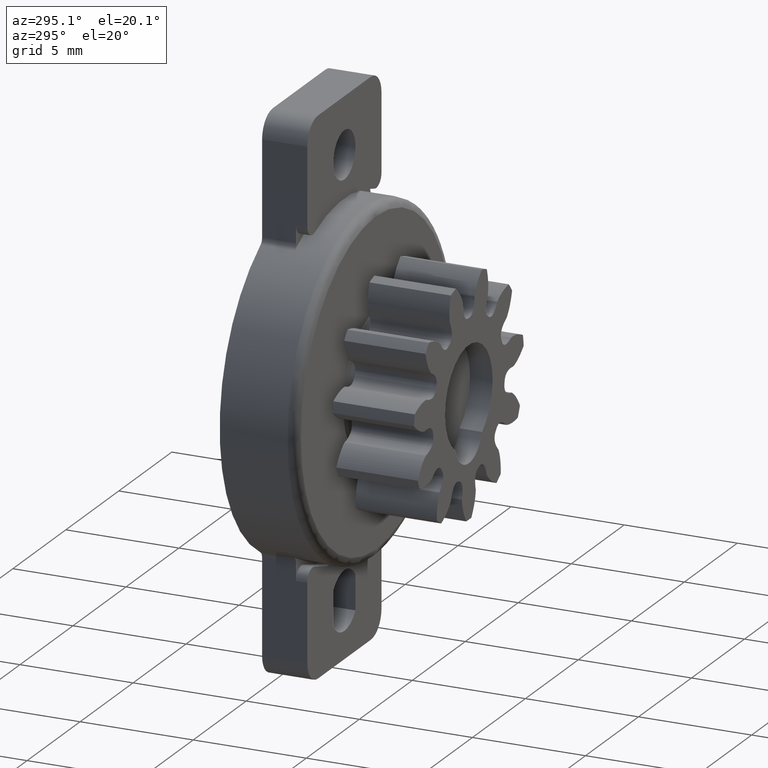
[diagram: clean part render]
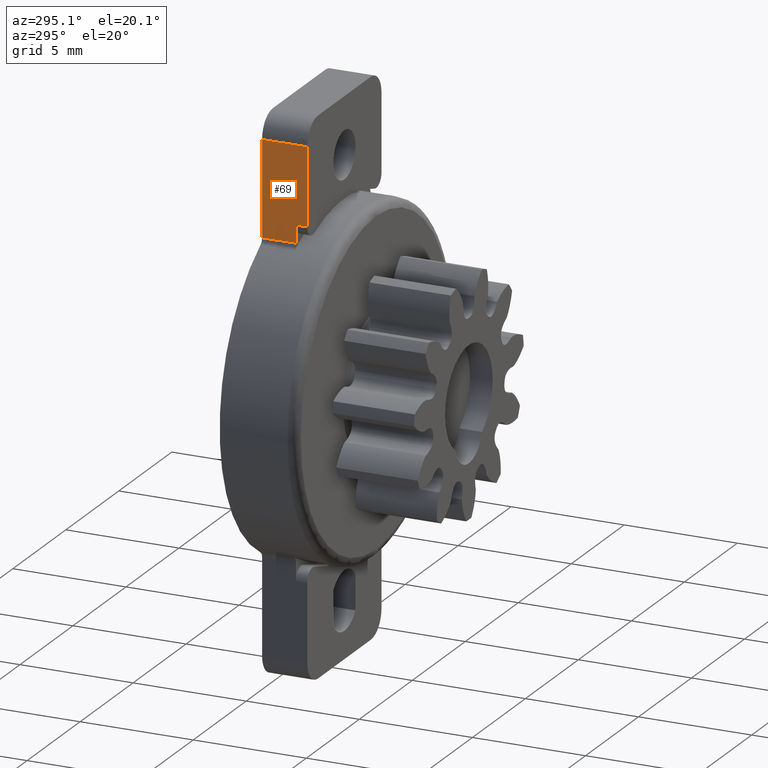
[diagram: same view with one face highlighted and labeled with its STEP entity id]
A machine part, auxiliary view. The second image highlights one B-rep face of the part: STEP entity #69.
In plain terms, the highlighted planar face has unit normal (-1, 0, 0).
Its self-contained STEP definition (entity closure, byte-faithful):
#69=ADVANCED_FACE('',(#981),#980,.T.);
#980=PLANE('',#7286);
#981=FACE_OUTER_BOUND('',#7287,.T.);
#7283=CARTESIAN_POINT('',(-3.50000000000E+00,-2.20000000000E+00,6.39293089670E+00));
#7284=DIRECTION('',(-1.00000000000E+00,0.00000000000E+00,0.00000000000E+00));
#7285=DIRECTION('',(0.00000000000E+00,0.00000000000E+00,1.00000000000E+00));
#7286=AXIS2_PLACEMENT_3D('',#7283,#7284,#7285);
#7287=EDGE_LOOP('',(#10622,#10623,#10624,#10625,#10626,#10627));
#10622=ORIENTED_EDGE('',*,*,#14325,.T.);
#10623=ORIENTED_EDGE('',*,*,#14355,.T.);
#10624=ORIENTED_EDGE('',*,*,#14351,.F.);
#10625=ORIENTED_EDGE('',*,*,#14362,.T.);
#10626=ORIENTED_EDGE('',*,*,#14275,.F.);
#10627=ORIENTED_EDGE('',*,*,#14352,.F.);
#14275=EDGE_CURVE('',#16183,#16190,#16191,.T.);
#14325=EDGE_CURVE('',#16531,#16532,#16533,.T.);
#14351=EDGE_CURVE('',#16707,#16657,#16714,.T.);
#14352=EDGE_CURVE('',#16531,#16183,#16720,.T.);
#14355=EDGE_CURVE('',#16532,#16657,#16738,.T.);
#14362=EDGE_CURVE('',#16707,#16190,#16780,.T.);
#16183=VERTEX_POINT('',#28901);
#16190=VERTEX_POINT('',#28906);
#16191=LINE('',#28907,#28908);
#16531=VERTEX_POINT('',#29127);
#16532=VERTEX_POINT('',#29128);
#16533=LINE('',#29129,#29130);
#16657=VERTEX_POINT('',#29211);
#16707=VERTEX_POINT('',#29246);
#16714=LINE('',#29251,#29252);
#16720=LINE('',#29254,#29255);
#16738=LINE('',#29263,#29264);
#16780=LINE('',#29284,#29285);
#28901=CARTESIAN_POINT('',(-3.50000000000E+00,-2.00000000000E+00,1.10000000000E+01));
#28906=CARTESIAN_POINT('',(-3.50000000000E+00,-2.00000000000E+00,7.58711540000E+00));
#28907=CARTESIAN_POINT('',(-3.50000000000E+00,-2.00000000000E+00,1.10000000000E+01));
#28908=VECTOR('',#28909,3.41288460000E+00);
#28909=DIRECTION('',(0.00000000000E+00,0.00000000000E+00,-1.00000000000E+00));
#29127=CARTESIAN_POINT('',(-3.50000009537E+00,0.00000000000E+00,1.10000000524E+01));
#29128=CARTESIAN_POINT('',(-3.50000000000E+00,0.00000000000E+00,6.81175536540E+00));
#29129=CARTESIAN_POINT('',(-3.50000000000E+00,0.00000000000E+00,1.10000000524E+01));
#29130=VECTOR('',#29131,4.18824468696E+00);
#29131=DIRECTION('',(0.00000000000E+00,0.00000000000E+00,-1.00000000000E+00));
#29211=CARTESIAN_POINT('',(-3.50000000000E+00,-1.50000000000E+00,6.81175536540E+00));
#29246=CARTESIAN_POINT('',(-3.50000000000E+00,-1.50000000000E+00,7.58711540000E+00));
#29251=CARTESIAN_POINT('',(-3.50000000000E+00,-1.50000000000E+00,7.58711540000E+00));
#29252=VECTOR('',#29253,7.75360034605E-01);
#29253=DIRECTION('',(0.00000000000E+00,0.00000000000E+00,-1.00000000000E+00));
#29254=CARTESIAN_POINT('',(-3.50000009537E+00,0.00000000000E+00,1.10000000524E+01));
#29255=VECTOR('',#29256,2.00000000000E+00);
#29256=DIRECTION('',(0.00000000000E+00,-1.00000000000E+00,0.00000000000E+00));
#29263=CARTESIAN_POINT('',(-3.50000000000E+00,0.00000000000E+00,6.81175536540E+00));
#29264=VECTOR('',#29265,1.50000000000E+00);
#29265=DIRECTION('',(0.00000000000E+00,-1.00000000000E+00,0.00000000000E+00));
#29284=CARTESIAN_POINT('',(-3.50000000000E+00,-1.50000000000E+00,7.58711540000E+00));
#29285=VECTOR('',#29286,5.00000000000E-01);
#29286=DIRECTION('',(0.00000000000E+00,-1.00000000000E+00,0.00000000000E+00));